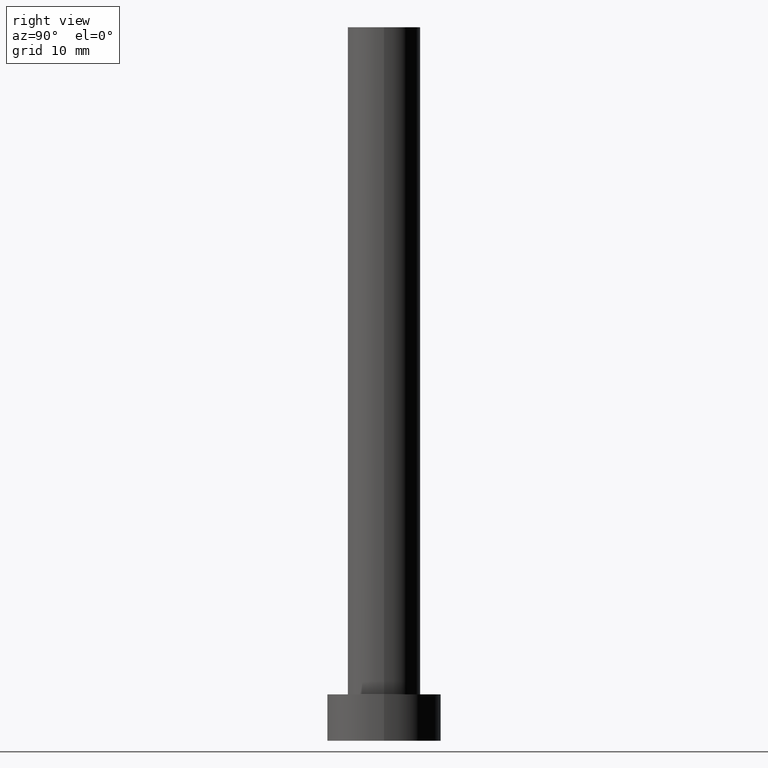
[diagram: clean part render]
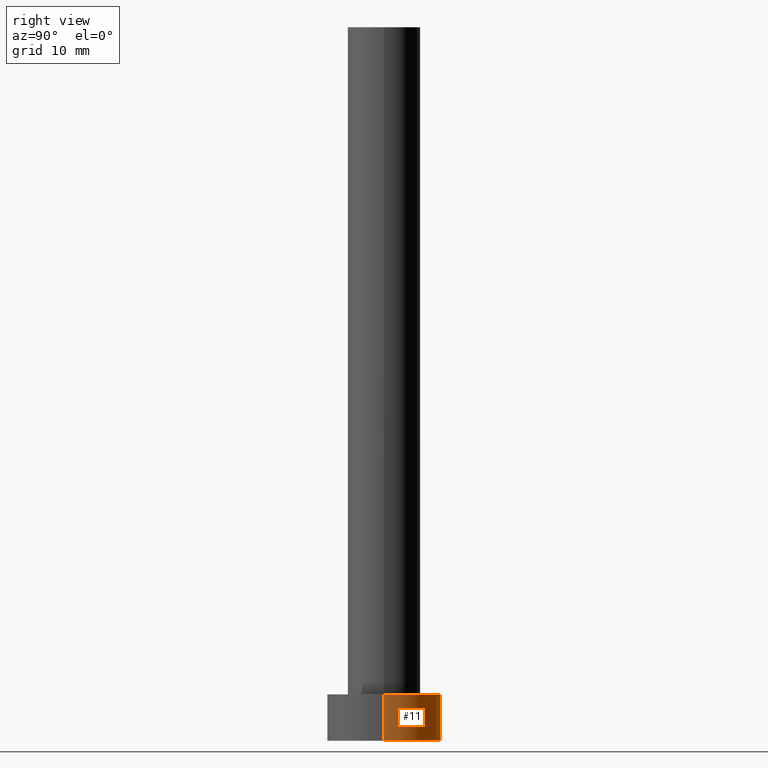
[diagram: same view with one face highlighted and labeled with its STEP entity id]
A machine part, right view. The second image highlights one B-rep face of the part: STEP entity #11.
In plain terms, the highlighted cylindrical surface (partial cylindrical patch) has radius 8 mm, axis along (-0, -0, -1).
Its self-contained STEP definition (entity closure, byte-faithful):
#6 = DIRECTION ( 'NONE',  ( -0.000000000000000000, -0.000000000000000000, -1.000000000000000000 ) ) ;
#11 = ADVANCED_FACE ( 'NONE', ( #226 ), #193, .T. ) ;
#14 = CIRCLE ( 'NONE', #60, 8.000000000000000000 ) ;
#15 = CARTESIAN_POINT ( 'NONE',  ( 0.000000000000000000, 0.000000000000000000, 6.500000000000000000 ) ) ;
#24 = ORIENTED_EDGE ( 'NONE', *, *, #35, .F. ) ;
#34 = DIRECTION ( 'NONE',  ( 1.000000000000000000, 0.000000000000000000, 0.000000000000000000 ) ) ;
#35 = EDGE_CURVE ( 'NONE', #150, #142, #84, .T. ) ;
#38 = DIRECTION ( 'NONE',  ( 0.000000000000000000, 0.000000000000000000, 1.000000000000000000 ) ) ;
#44 = EDGE_LOOP ( 'NONE', ( #74, #173, #98, #24 ) ) ;
#45 = DIRECTION ( 'NONE',  ( -1.000000000000000000, 0.000000000000000000, 0.000000000000000000 ) ) ;
#60 = AXIS2_PLACEMENT_3D ( 'NONE', #249, #38, #90 ) ;
#74 = ORIENTED_EDGE ( 'NONE', *, *, #201, .F. ) ;
#78 = EDGE_CURVE ( 'NONE', #103, #213, #246, .T. ) ;
#84 = LINE ( 'NONE', #172, #216 ) ;
#86 = CARTESIAN_POINT ( 'NONE',  ( 0.000000000000000000, 0.000000000000000000, 6.500000000000000000 ) ) ;
#90 = DIRECTION ( 'NONE',  ( 1.000000000000000000, 0.000000000000000000, 0.000000000000000000 ) ) ;
#98 = ORIENTED_EDGE ( 'NONE', *, *, #179, .T. ) ;
#103 = VERTEX_POINT ( 'NONE', #227 ) ;
#132 = CIRCLE ( 'NONE', #254, 8.000000000000000000 ) ;
#142 = VERTEX_POINT ( 'NONE', #219 ) ;
#150 = VERTEX_POINT ( 'NONE', #248 ) ;
#151 = AXIS2_PLACEMENT_3D ( 'NONE', #86, #238, #45 ) ;
#159 = DIRECTION ( 'NONE',  ( 0.000000000000000000, 0.000000000000000000, 1.000000000000000000 ) ) ;
#172 = CARTESIAN_POINT ( 'NONE',  ( -8.000000000000000000, 0.000000000000000000, 6.500000000000000000 ) ) ;
#173 = ORIENTED_EDGE ( 'NONE', *, *, #78, .T. ) ;
#179 = EDGE_CURVE ( 'NONE', #213, #142, #14, .T. ) ;
#193 = CYLINDRICAL_SURFACE ( 'NONE', #151, 8.000000000000000000 ) ;
#195 = DIRECTION ( 'NONE',  ( -0.000000000000000000, -0.000000000000000000, -1.000000000000000000 ) ) ;
#197 = VECTOR ( 'NONE', #195, 1000.000000000000000 ) ;
#201 = EDGE_CURVE ( 'NONE', #103, #150, #132, .T. ) ;
#213 = VERTEX_POINT ( 'NONE', #229 ) ;
#214 = CARTESIAN_POINT ( 'NONE',  ( 8.000000000000000000, 9.797174393178823685E-16, 6.500000000000000000 ) ) ;
#216 = VECTOR ( 'NONE', #6, 1000.000000000000000 ) ;
#219 = CARTESIAN_POINT ( 'NONE',  ( -8.000000000000000000, 0.000000000000000000, 0.000000000000000000 ) ) ;
#226 = FACE_OUTER_BOUND ( 'NONE', #44, .T. ) ;
#227 = CARTESIAN_POINT ( 'NONE',  ( 8.000000000000000000, 9.797174393178823685E-16, 6.500000000000000000 ) ) ;
#229 = CARTESIAN_POINT ( 'NONE',  ( 8.000000000000000000, 9.797174393178823685E-16, 0.000000000000000000 ) ) ;
#238 = DIRECTION ( 'NONE',  ( -0.000000000000000000, -0.000000000000000000, -1.000000000000000000 ) ) ;
#246 = LINE ( 'NONE', #214, #197 ) ;
#248 = CARTESIAN_POINT ( 'NONE',  ( -8.000000000000000000, 0.000000000000000000, 6.500000000000000000 ) ) ;
#249 = CARTESIAN_POINT ( 'NONE',  ( 0.000000000000000000, 0.000000000000000000, 0.000000000000000000 ) ) ;
#254 = AXIS2_PLACEMENT_3D ( 'NONE', #15, #159, #34 ) ;